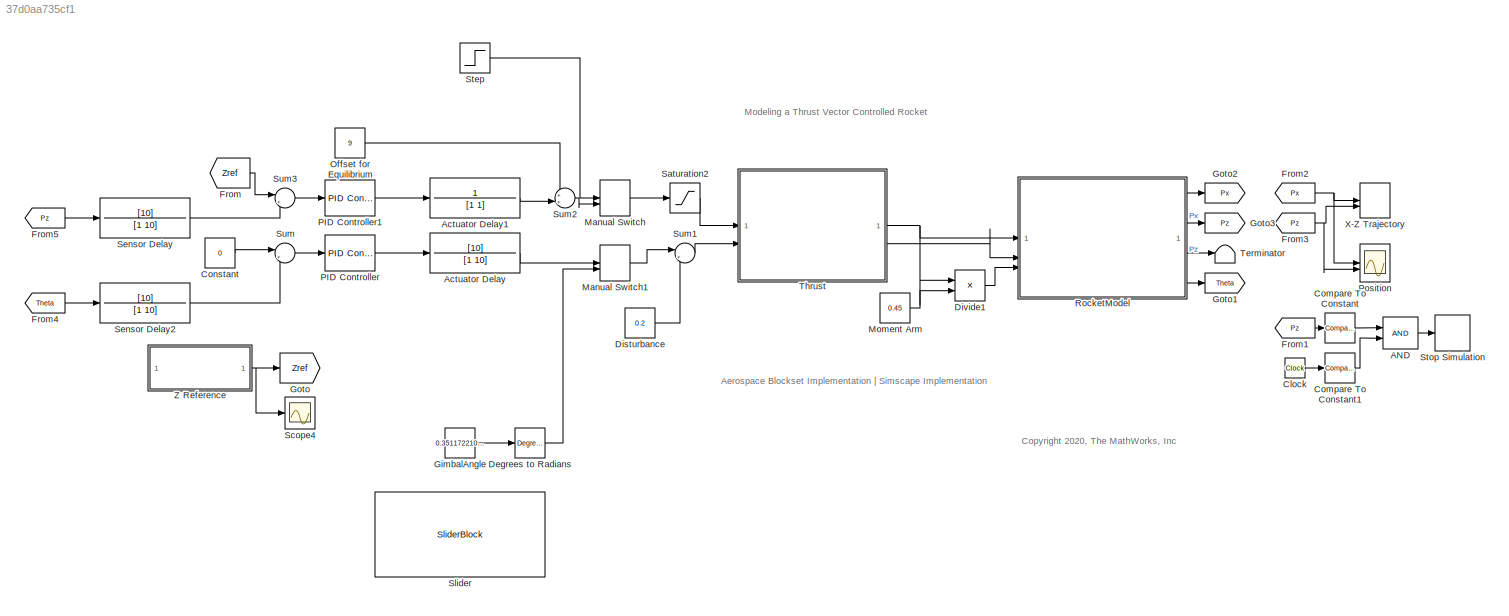
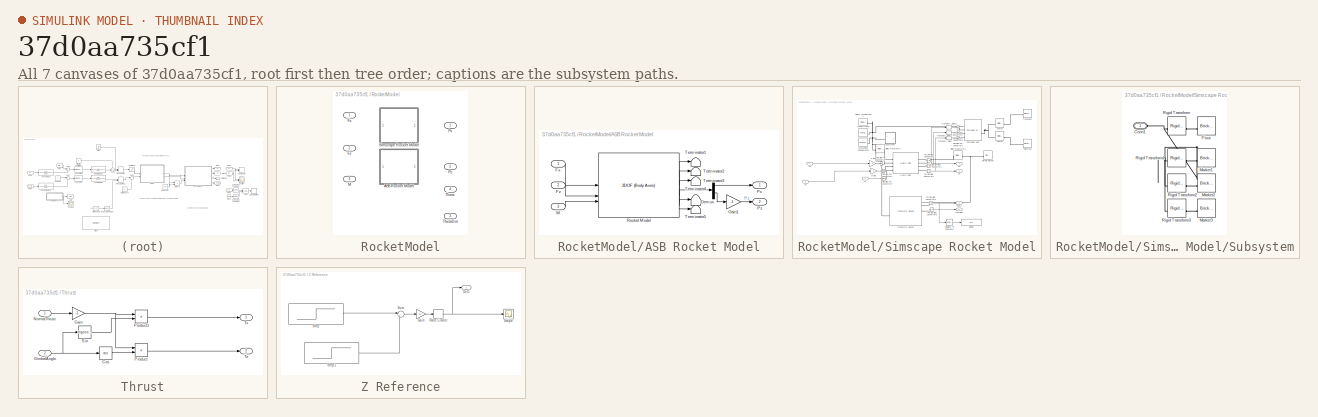
[diagram: thumbnail index - all 7 canvases of the model, root first then tree order]
MODEL slx_37d0aa735cf1
KIND model
CONFIG AbsTol = auto
CONFIG EnableMultiTasking = off
CONFIG FixedStep = 0.001
CONFIG MaxStep = auto
CONFIG MinStep = auto
CONFIG PostLoadFcn = VSS_MODE = 0;
CONFIG RelTol = 1e-3
CONFIG SampleTimeConstraint = Unconstrained
CONFIG SolverName = FixedStepAuto
CONFIG StartTime = 0.0
CONFIG StopTime = 100
BLOCK [Logic] AND
  AllPortsSameDT = off
  IconShape = distinctive
  OutDataTypeStr = boolean
BLOCK [TransferFcn] Actuator Delay
  Denominator = [1 10]
  Numerator = [10]
BLOCK [TransferFcn] Actuator Delay1
  Denominator = [1 1]
  Numerator = 1
BLOCK [Clock] Clock
BLOCK [Reference] Compare To Constant  REF=simulink/Logic and Bit
Operations/Compare
To Constant
  SourceBlock = simulink/Logic and Bit\nOperations/Compare\nTo Constant
  SourceType = Compare To Constant
BLOCK [Reference] Compare To Constant1  REF=simulink/Logic and Bit
Operations/Compare
To Constant
  SourceBlock = simulink/Logic and Bit\nOperations/Compare\nTo Constant
  SourceType = Compare To Constant
BLOCK [Constant] Constant
  Value = 0
BLOCK [Reference] Degrees to Radians  REF=simulink_extras/Transformations/Degrees to
Radians
  SourceBlock = simulink_extras/Transformations/Degrees to\nRadians
  SourceType = DegreesToRadians
BLOCK [Constant] Disturbance
  Value = 0.2
BLOCK [Product] Divide1
  Inputs = **
BLOCK [From] From
  GotoTag = Zref
BLOCK [From] From1
  GotoTag = Pz
BLOCK [From] From2
  GotoTag = Px
BLOCK [From] From3
  GotoTag = Pz
BLOCK [From] From4
  GotoTag = Theta
BLOCK [From] From5
  GotoTag = Pz
BLOCK [Constant] GimbalAngle
  Value = 0.3511722106296797
BLOCK [Goto] Goto
  GotoTag = Zref
BLOCK [Goto] Goto1
  GotoTag = Theta
BLOCK [Goto] Goto2
  GotoTag = Px
BLOCK [Goto] Goto3
  GotoTag = Pz
BLOCK [ManualSwitch] Manual Switch
  CurrentSetting = 0
BLOCK [ManualSwitch] Manual Switch1
BLOCK [Constant] Moment Arm 
  Value = 0.45
BLOCK [Constant] Offset for Equilibrium
  Value = 9
BLOCK [Reference] PID Controller  REF=slpidlib/PID Controller
  LibrarySourceBlock = simulink/Continuous/PID Controller
  SourceBlock = slpidlib/PID Controller
  SourceType = PID 1dof
BLOCK [Reference] PID Controller1  REF=slpidlib/PID Controller
  LibrarySourceBlock = simulink/Continuous/PID Controller
  SourceBlock = slpidlib/PID Controller
  SourceType = PID 1dof
BLOCK [Scope] Position
  Floating = off
  NumInputPorts = 2
  ScopeSpecificationString = Simulink.scopes.TimeScopeBlockCfg('CurrentConfiguration', extmgr.ConfigurationSet(extmgr.Configuration('Core','General UI',true),extmgr.Configuration('Core','Source UI',true),extmgr.Configuration('Sources','WiredSimulink',true,'DataLoggingVariableName','ScopeData2'),extmgr.Configuration('Visuals','Time Domain',true,'SerializedDisplays',{struct('MinYLimReal','-15.24001','MaxYLimReal','1.75797','YLa...<+2289ch>
BLOCK [SubSystem] RocketModel
  Variant = on
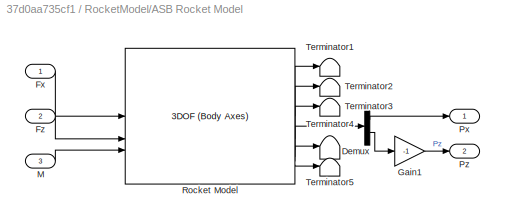
BLOCK [SubSystem] RocketModel/ASB Rocket Model
  VariantControl = VSS_MODE == 1
BLOCK [Demux] RocketModel/ASB Rocket Model/Demux
  Outputs = 2
BLOCK [Inport] RocketModel/ASB Rocket Model/Fx
BLOCK [Inport] RocketModel/ASB Rocket Model/Fz
  Port = 2
BLOCK [Gain] RocketModel/ASB Rocket Model/Gain1
  Gain = -1
BLOCK [Inport] RocketModel/ASB Rocket Model/M
  Port = 3
BLOCK [Outport] RocketModel/ASB Rocket Model/Px
BLOCK [Outport] RocketModel/ASB Rocket Model/Pz
  Port = 2
BLOCK [Reference] RocketModel/ASB Rocket Model/Rocket Model  REF=shared3dof/3DOF (Body Axes)
  SourceBlock = shared3dof/3DOF (Body Axes)
  SourceType = 3DOF EoM
BLOCK [Terminator] RocketModel/ASB Rocket Model/Terminator1
BLOCK [Terminator] RocketModel/ASB Rocket Model/Terminator2
BLOCK [Terminator] RocketModel/ASB Rocket Model/Terminator3
BLOCK [Terminator] RocketModel/ASB Rocket Model/Terminator4
BLOCK [Terminator] RocketModel/ASB Rocket Model/Terminator5
BLOCK [Inport] RocketModel/Fx 
BLOCK [Inport] RocketModel/Fz
  Port = 2
BLOCK [Inport] RocketModel/M
  Port = 3
BLOCK [Outport] RocketModel/Px
BLOCK [Outport] RocketModel/Pz 
  Port = 2
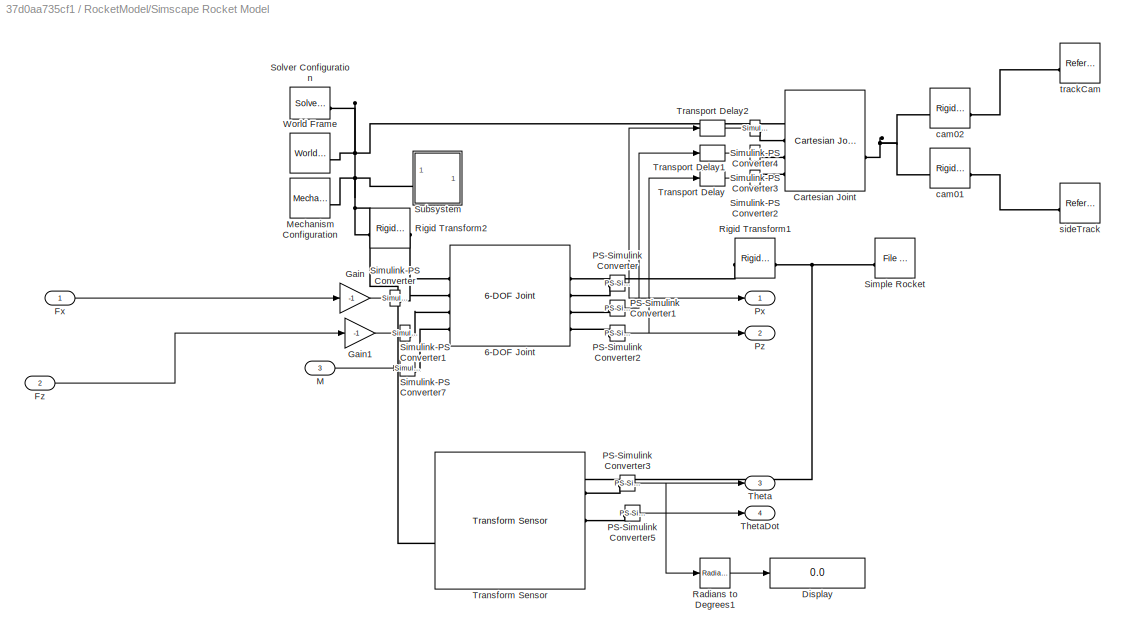
BLOCK [SubSystem] RocketModel/Simscape Rocket Model
  VariantControl = VSS_MODE == 0
BLOCK [Reference] RocketModel/Simscape Rocket Model/6-DOF Joint  REF=sm_lib/Joints/6-DOF Joint
  SourceBlock = sm_lib/Joints/6-DOF Joint
  SourceType = 6-DOF Joint
BLOCK [Reference] RocketModel/Simscape Rocket Model/Cartesian Joint  REF=sm_lib/Joints/Cartesian
Joint
  SourceBlock = sm_lib/Joints/Cartesian\nJoint
  SourceType = Cartesian\nJoint
BLOCK [Display] RocketModel/Simscape Rocket Model/Display
  Decimation = 1
BLOCK [Inport] RocketModel/Simscape Rocket Model/Fx
BLOCK [Inport] RocketModel/Simscape Rocket Model/Fz
  Port = 2
BLOCK [Gain] RocketModel/Simscape Rocket Model/Gain
  Gain = -1
BLOCK [Gain] RocketModel/Simscape Rocket Model/Gain1
  Gain = -1
BLOCK [Inport] RocketModel/Simscape Rocket Model/M
  Port = 3
BLOCK [Reference] RocketModel/Simscape Rocket Model/Mechanism Configuration  REF=sm_lib/Utilities/Mechanism
Configuration
  SourceBlock = sm_lib/Utilities/Mechanism\nConfiguration
  SourceType = Mechanism\nConfiguration
BLOCK [Reference] RocketModel/Simscape Rocket Model/PS-Simulink Converter  REF=nesl_utility/PS-Simulink
Converter
  SourceBlock = nesl_utility/PS-Simulink\nConverter
  SourceType = PS-Simulink\nConverter
BLOCK [Reference] RocketModel/Simscape Rocket Model/PS-Simulink Converter1  REF=nesl_utility/PS-Simulink
Converter
  SourceBlock = nesl_utility/PS-Simulink\nConverter
  SourceType = PS-Simulink\nConverter
BLOCK [Reference] RocketModel/Simscape Rocket Model/PS-Simulink Converter2  REF=nesl_utility/PS-Simulink
Converter
  SourceBlock = nesl_utility/PS-Simulink\nConverter
  SourceType = PS-Simulink\nConverter
BLOCK [Reference] RocketModel/Simscape Rocket Model/PS-Simulink Converter3  REF=nesl_utility/PS-Simulink
Converter
  SourceBlock = nesl_utility/PS-Simulink\nConverter
  SourceType = PS-Simulink\nConverter
BLOCK [Reference] RocketModel/Simscape Rocket Model/PS-Simulink Converter5  REF=nesl_utility/PS-Simulink
Converter
  SourceBlock = nesl_utility/PS-Simulink\nConverter
  SourceType = PS-Simulink\nConverter
BLOCK [Outport] RocketModel/Simscape Rocket Model/Px
BLOCK [Outport] RocketModel/Simscape Rocket Model/Pz
  Port = 2
BLOCK [Reference] RocketModel/Simscape Rocket Model/Radians to Degrees1  REF=simulink_extras/Transformations/Radians
to Degrees
  SourceBlock = simulink_extras/Transformations/Radians\nto Degrees
  SourceType = RadiansToDegrees
BLOCK [Reference] RocketModel/Simscape Rocket Model/Rigid Transform1  REF=sm_lib/Frames and
Transforms/Rigid
Transform
  NameLocation = top
  SourceBlock = sm_lib/Frames and\nTransforms/Rigid\nTransform
  SourceType = Rigid\nTransform
BLOCK [Reference] RocketModel/Simscape Rocket Model/Rigid Transform2  REF=sm_lib/Frames and
Transforms/Rigid
Transform
  NameLocation = top
  SourceBlock = sm_lib/Frames and\nTransforms/Rigid\nTransform
  SourceType = Rigid\nTransform
BLOCK [Reference] RocketModel/Simscape Rocket Model/Simple Rocket  REF=sm_lib/Body Elements/File Solid
  NameLocation = top
  SourceBlock = sm_lib/Body Elements/File Solid
  SourceType = File Solid
BLOCK [Reference] RocketModel/Simscape Rocket Model/Simulink-PS Converter  REF=nesl_utility/Simulink-PS
Converter
  SourceBlock = nesl_utility/Simulink-PS\nConverter
  SourceType = Simulink-PS\nConverter
BLOCK [Reference] RocketModel/Simscape Rocket Model/Simulink-PS Converter1  REF=nesl_utility/Simulink-PS
Converter
  SourceBlock = nesl_utility/Simulink-PS\nConverter
  SourceType = Simulink-PS\nConverter
BLOCK [Reference] RocketModel/Simscape Rocket Model/Simulink-PS Converter2  REF=nesl_utility/Simulink-PS
Converter
  SourceBlock = nesl_utility/Simulink-PS\nConverter
  SourceType = Simulink-PS\nConverter
BLOCK [Reference] RocketModel/Simscape Rocket Model/Simulink-PS Converter3  REF=nesl_utility/Simulink-PS
Converter
  SourceBlock = nesl_utility/Simulink-PS\nConverter
  SourceType = Simulink-PS\nConverter
BLOCK [Reference] RocketModel/Simscape Rocket Model/Simulink-PS Converter4  REF=nesl_utility/Simulink-PS
Converter
  SourceBlock = nesl_utility/Simulink-PS\nConverter
  SourceType = Simulink-PS\nConverter
BLOCK [Reference] RocketModel/Simscape Rocket Model/Simulink-PS Converter7  REF=nesl_utility/Simulink-PS
Converter
  SourceBlock = nesl_utility/Simulink-PS\nConverter
  SourceType = Simulink-PS\nConverter
BLOCK [Reference] RocketModel/Simscape Rocket Model/Solver Configuration  REF=nesl_utility/Solver
Configuration
  SourceBlock = nesl_utility/Solver\nConfiguration
  SourceType = Solver\nConfiguration
BLOCK [SubSystem] RocketModel/Simscape Rocket Model/Subsystem
BLOCK [PMIOPort] RocketModel/Simscape Rocket Model/Subsystem/Conn1
  Side = Left
BLOCK [Reference] RocketModel/Simscape Rocket Model/Subsystem/Floor  REF=sm_lib/Body Elements/Brick Solid
  NameLocation = top
  SourceBlock = sm_lib/Body Elements/Brick Solid
  SourceType = Brick Solid
BLOCK [Reference] RocketModel/Simscape Rocket Model/Subsystem/Marker1  REF=sm_lib/Body Elements/Brick Solid
  NameLocation = top
  SourceBlock = sm_lib/Body Elements/Brick Solid
  SourceType = Brick Solid
BLOCK [Reference] RocketModel/Simscape Rocket Model/Subsystem/Marker2  REF=sm_lib/Body Elements/Brick Solid
  NameLocation = top
  SourceBlock = sm_lib/Body Elements/Brick Solid
  SourceType = Brick Solid
BLOCK [Reference] RocketModel/Simscape Rocket Model/Subsystem/Marker3  REF=sm_lib/Body Elements/Brick Solid
  NameLocation = top
  SourceBlock = sm_lib/Body Elements/Brick Solid
  SourceType = Brick Solid
BLOCK [Reference] RocketModel/Simscape Rocket Model/Subsystem/Rigid Transform  REF=sm_lib/Frames and
Transforms/Rigid
Transform
  SourceBlock = sm_lib/Frames and\nTransforms/Rigid\nTransform
  SourceType = Rigid\nTransform
BLOCK [Reference] RocketModel/Simscape Rocket Model/Subsystem/Rigid Transform1  REF=sm_lib/Frames and
Transforms/Rigid
Transform
  SourceBlock = sm_lib/Frames and\nTransforms/Rigid\nTransform
  SourceType = Rigid\nTransform
BLOCK [Reference] RocketModel/Simscape Rocket Model/Subsystem/Rigid Transform2  REF=sm_lib/Frames and
Transforms/Rigid
Transform
  SourceBlock = sm_lib/Frames and\nTransforms/Rigid\nTransform
  SourceType = Rigid\nTransform
BLOCK [Reference] RocketModel/Simscape Rocket Model/Subsystem/Rigid Transform3  REF=sm_lib/Frames and
Transforms/Rigid
Transform
  SourceBlock = sm_lib/Frames and\nTransforms/Rigid\nTransform
  SourceType = Rigid\nTransform
BLOCK [Outport] RocketModel/Simscape Rocket Model/Theta
  Port = 3
BLOCK [Outport] RocketModel/Simscape Rocket Model/ThetaDot
  Port = 4
BLOCK [Reference] RocketModel/Simscape Rocket Model/Transform Sensor  REF=sm_lib/Frames and
Transforms/Transform
Sensor
  SourceBlock = sm_lib/Frames and\nTransforms/Transform\nSensor
  SourceType = Transform\nSensor
BLOCK [TransportDelay] RocketModel/Simscape Rocket Model/Transport Delay
  BufferSize = 100
  DelayTime = 0.01
BLOCK [TransportDelay] RocketModel/Simscape Rocket Model/Transport Delay1
  BufferSize = 100
  DelayTime = 0.01
BLOCK [TransportDelay] RocketModel/Simscape Rocket Model/Transport Delay2
  BufferSize = 100
  DelayTime = 0.01
BLOCK [Reference] RocketModel/Simscape Rocket Model/World Frame  REF=sm_lib/Frames and
Transforms/World Frame
  SourceBlock = sm_lib/Frames and\nTransforms/World Frame
  SourceType = World Frame
BLOCK [Reference] RocketModel/Simscape Rocket Model/cam01  REF=sm_lib/Frames and
Transforms/Rigid
Transform
  SourceBlock = sm_lib/Frames and\nTransforms/Rigid\nTransform
  SourceType = Rigid\nTransform
BLOCK [Reference] RocketModel/Simscape Rocket Model/cam02  REF=sm_lib/Frames and
Transforms/Rigid
Transform
  SourceBlock = sm_lib/Frames and\nTransforms/Rigid\nTransform
  SourceType = Rigid\nTransform
BLOCK [Reference] RocketModel/Simscape Rocket Model/sideTrack  REF=sm_lib/Frames and
Transforms/Reference
Frame
  SourceBlock = sm_lib/Frames and\nTransforms/Reference\nFrame
  SourceType = Reference\nFrame
BLOCK [Reference] RocketModel/Simscape Rocket Model/trackCam  REF=sm_lib/Frames and
Transforms/Reference
Frame
  SourceBlock = sm_lib/Frames and\nTransforms/Reference\nFrame
  SourceType = Reference\nFrame
BLOCK [Outport] RocketModel/Theta
  Port = 4
BLOCK [Outport] RocketModel/ThetaDot
  Port = 3
BLOCK [Saturate] Saturation2
  LowerLimit = 0
  UpperLimit = 100
BLOCK [Scope] Scope4
  Floating = off
  NumInputPorts = 1
  ScopeSpecificationString = Simulink.scopes.TimeScopeBlockCfg('CurrentConfiguration', extmgr.ConfigurationSet(extmgr.Configuration('Core','General UI',true),extmgr.Configuration('Core','Source UI',true),extmgr.Configuration('Sources','WiredSimulink',true,'DataLoggingVariableName','ScopeData6'),extmgr.Configuration('Visuals','Time Domain',true,'SerializedDisplays',{struct('MinYLimReal','-1.125','MaxYLimReal','10.125','YLabelR...<+1481ch>
BLOCK [TransferFcn] Sensor Delay
  Denominator = [1 10]
  Numerator = [10]
BLOCK [TransferFcn] Sensor Delay2
  Denominator = [1 10]
  Numerator = [10]
BLOCK [SliderBlock] Slider
  ScaleMax = 1
  ScaleMin = -1
  TickInterval = 1
BLOCK [Step] Step
  After = 0
  Before = 15
  SampleTime = 0
  Time = 2
BLOCK [Stop] Stop Simulation
BLOCK [Sum] Sum
  Inputs = |+-
BLOCK [Sum] Sum1
  Inputs = |++
BLOCK [Sum] Sum2
  Inputs = ++|
BLOCK [Sum] Sum3
  Inputs = |+-
BLOCK [Terminator] Terminator
BLOCK [SubSystem] Thrust
BLOCK [Trigonometry] Thrust/Cos
  Operator = cos
BLOCK [Gain] Thrust/Gain
  Gain = -1
BLOCK [Inport] Thrust/GimbalAngle
  Port = 2
BLOCK [Inport] Thrust/NormalThrust
BLOCK [Product] Thrust/Product
  RndMeth = Zero
BLOCK [Product] Thrust/Product1
  RndMeth = Zero
BLOCK [Trigonometry] Thrust/Sin
BLOCK [Outport] Thrust/Tx
BLOCK [Outport] Thrust/Tz
  Port = 2
BLOCK [Record] X-Z Trajectory
  CompatibilityTag = XY
  FileSettingsInternal = {"entries":[{"content":{"excelSettings":{"content":{},"type":"Streamout.ExcelSettings"}},"type":"Streamout.FileSettingStorage","uuid":""}],"packageUris":["http:\/\/schema.mathworks.com\/mf0\/streamout_blocks\/R2020a"],"version":"1.0"}
  Layout = [1 1]
  SignalsInternal = {"entries":[{"content":{"signals":[{"content":{"blockPath":[],"dimensions":[1],"domain":"","lineColor":"#a2142f","plots":[ 1 ],"port":1,"sid":[""],"signalID":1,"signalName":"From2"},"type":"RecordBlkView.Signal","uuid":""},{"content":{"blockPath":[],"dimensions":[1],"domain":"","lineColor":"#139fff","plots":[ 1 ],"port":2,"sid":[""],"signalID":2,"signalName":"From3"},"type":"RecordBlkView.Signal",...<+347ch>
  VisualizationBindings = {"xyplotplugin":{"info":[{"series":[{"bindingParametersList":[{"parameter":"X-Axis","signalID":1,"signalName":"From2"},{"parameter":"Y-Axis","signalID":2,"signalName":"From3"}],"seriesID":0}],"subplotID":1}]}}
  st = -1
BLOCK [SubSystem] Z Reference
BLOCK [Gain] Z Reference/Gain
  Gain = 20
BLOCK [Outport] Z Reference/Out1
BLOCK [RateLimiter] Z Reference/Rate Limiter
  SampleTimeMode = inherited
BLOCK [Scope] Z Reference/Scope
  Floating = off
  NumInputPorts = 1
  ScopeSpecificationString = Simulink.scopes.TimeScopeBlockCfg('CurrentConfiguration', extmgr.ConfigurationSet(extmgr.Configuration('Core','General UI',true),extmgr.Configuration('Core','Source UI',true),extmgr.Configuration('Sources','WiredSimulink',true,'DataLoggingVariableName','ScopeData5'),extmgr.Configuration('Visuals','Time Domain',true,'SerializedDisplays',{struct('MinYLimReal','-1.125','MaxYLimReal','10.125','YLabelR...<+1478ch>
BLOCK [Step] Z Reference/Step
  SampleTime = 0
BLOCK [Step] Z Reference/Step1
  SampleTime = 0
  Time = 10
BLOCK [Sum] Z Reference/Sum
  Inputs = |+-
ANNOTATION (root): Aerospace Blockset Implementation | Simscape Implementation
ANNOTATION (root): Modeling a Thrust Vector Controlled Rocket
ANNOTATION (root): <copyright redacted>
LINE AND:1 -> Stop Simulation:1
LINE Actuator Delay1:1 -> Sum2:2
LINE Actuator Delay:1 -> Manual Switch1:1
LINE Clock:1 -> Compare To Constant1:1
LINE Compare To Constant1:1 -> AND:2
LINE Compare To Constant:1 -> AND:1
LINE Constant:1 -> Sum:1
LINE Degrees to Radians:1 -> Manual Switch1:2
LINE Disturbance:1 -> Sum1:2
LINE Divide1:1 -> RocketModel:3
LINE From1:1 -> Compare To Constant:1
NET From2:1 -> Position:1, X-Z Trajectory:1
NET From3:1 -> Position:2, X-Z Trajectory:2
LINE From4:1 -> Sensor Delay2:1
LINE From5:1 -> Sensor Delay:1
LINE From:1 -> Sum3:1
LINE GimbalAngle:1 -> Degrees to Radians:1
LINE Manual Switch1:1 -> Sum1:1
LINE Manual Switch:1 -> Saturation2:1
LINE Moment Arm :1 -> Divide1:2
LINE Offset for Equilibrium:1 -> Sum2:1
LINE PID Controller1:1 -> Actuator Delay1:1
LINE PID Controller:1 -> Actuator Delay:1
LINE RocketModel/ASB Rocket Model/Demux:1 -> RocketModel/ASB Rocket Model/Px:1
LINE RocketModel/ASB Rocket Model/Demux:2 -> RocketModel/ASB Rocket Model/Gain1:1
LINE RocketModel/ASB Rocket Model/Fx:1 -> RocketModel/ASB Rocket Model/Rocket Model:1
LINE RocketModel/ASB Rocket Model/Fz:1 -> RocketModel/ASB Rocket Model/Rocket Model:2
LINE RocketModel/ASB Rocket Model/Gain1:1 -> RocketModel/ASB Rocket Model/Pz:1
LINE RocketModel/ASB Rocket Model/M:1 -> RocketModel/ASB Rocket Model/Rocket Model:3
LINE RocketModel/ASB Rocket Model/Rocket Model:1 -> RocketModel/ASB Rocket Model/Terminator1:1
LINE RocketModel/ASB Rocket Model/Rocket Model:2 -> RocketModel/ASB Rocket Model/Terminator2:1
LINE RocketModel/ASB Rocket Model/Rocket Model:3 -> RocketModel/ASB Rocket Model/Terminator3:1
LINE RocketModel/ASB Rocket Model/Rocket Model:4 -> RocketModel/ASB Rocket Model/Demux:1
LINE RocketModel/ASB Rocket Model/Rocket Model:5 -> RocketModel/ASB Rocket Model/Terminator4:1
LINE RocketModel/ASB Rocket Model/Rocket Model:6 -> RocketModel/ASB Rocket Model/Terminator5:1
LINE RocketModel/Simscape Rocket Model/Fx:1 -> RocketModel/Simscape Rocket Model/Gain:1
LINE RocketModel/Simscape Rocket Model/Fz:1 -> RocketModel/Simscape Rocket Model/Gain1:1
LINE RocketModel/Simscape Rocket Model/Gain1:1 -> RocketModel/Simscape Rocket Model/Simulink-PS Converter1:1
LINE RocketModel/Simscape Rocket Model/Gain:1 -> RocketModel/Simscape Rocket Model/Simulink-PS Converter:1
LINE RocketModel/Simscape Rocket Model/M:1 -> RocketModel/Simscape Rocket Model/Simulink-PS Converter7:1
LINE RocketModel/Simscape Rocket Model/PS-Simulink Converter1:1 -> RocketModel/Simscape Rocket Model/Transport Delay1:1
NET RocketModel/Simscape Rocket Model/PS-Simulink Converter2:1 -> RocketModel/Simscape Rocket Model/Pz:1, RocketModel/Simscape Rocket Model/Transport Delay:1
NET RocketModel/Simscape Rocket Model/PS-Simulink Converter3:1 -> RocketModel/Simscape Rocket Model/Radians to Degrees1:1, RocketModel/Simscape Rocket Model/Theta:1
LINE RocketModel/Simscape Rocket Model/PS-Simulink Converter5:1 -> RocketModel/Simscape Rocket Model/ThetaDot:1
NET RocketModel/Simscape Rocket Model/PS-Simulink Converter:1 -> RocketModel/Simscape Rocket Model/Px:1, RocketModel/Simscape Rocket Model/Transport Delay2:1
LINE RocketModel/Simscape Rocket Model/Radians to Degrees1:1 -> RocketModel/Simscape Rocket Model/Display:1
LINE RocketModel/Simscape Rocket Model/Transport Delay1:1 -> RocketModel/Simscape Rocket Model/Simulink-PS Converter3:1
LINE RocketModel/Simscape Rocket Model/Transport Delay2:1 -> RocketModel/Simscape Rocket Model/Simulink-PS Converter4:1
LINE RocketModel/Simscape Rocket Model/Transport Delay:1 -> RocketModel/Simscape Rocket Model/Simulink-PS Converter2:1
LINE RocketModel:1 -> Goto2:1
LINE RocketModel:2 -> Goto3:1
LINE RocketModel:3 -> Terminator:1
LINE RocketModel:4 -> Goto1:1
LINE Saturation2:1 -> Thrust:1
LINE Sensor Delay2:1 -> Sum:2
LINE Sensor Delay:1 -> Sum3:2
LINE Step:1 -> Manual Switch:1
LINE Sum1:1 -> Thrust:2
LINE Sum2:1 -> Manual Switch:2
LINE Sum3:1 -> PID Controller1:1
LINE Sum:1 -> PID Controller:1
LINE Thrust/Cos:1 -> Thrust/Product:2
NET Thrust/Gain:1 -> Thrust/Product1:1, Thrust/Product:1
NET Thrust/GimbalAngle:1 -> Thrust/Cos:1, Thrust/Sin:1
LINE Thrust/NormalThrust:1 -> Thrust/Gain:1
LINE Thrust/Product1:1 -> Thrust/Tx:1
LINE Thrust/Product:1 -> Thrust/Tz:1
LINE Thrust/Sin:1 -> Thrust/Product1:2
NET Thrust:1 -> Divide1:1, RocketModel:1
LINE Thrust:2 -> RocketModel:2
LINE Z Reference/Gain:1 -> Z Reference/Rate Limiter:1
NET Z Reference/Rate Limiter:1 -> Z Reference/Out1:1, Z Reference/Scope:1
LINE Z Reference/Step1:1 -> Z Reference/Sum:2
LINE Z Reference/Step:1 -> Z Reference/Sum:1
LINE Z Reference/Sum:1 -> Z Reference/Gain:1
NET Z Reference:1 -> Goto:1, Scope4:1
PLINE RocketModel/Simscape Rocket Model/6-DOF Joint:LConn1 -- RocketModel/Simscape Rocket Model/Rigid Transform2:LConn1
PLINE RocketModel/Simscape Rocket Model/6-DOF Joint:LConn2 -- RocketModel/Simscape Rocket Model/Simulink-PS Converter:RConn1
PLINE RocketModel/Simscape Rocket Model/6-DOF Joint:LConn3 -- RocketModel/Simscape Rocket Model/Simulink-PS Converter1:RConn1
PLINE RocketModel/Simscape Rocket Model/6-DOF Joint:LConn4 -- RocketModel/Simscape Rocket Model/Simulink-PS Converter7:RConn1
PLINE RocketModel/Simscape Rocket Model/6-DOF Joint:RConn1 -- RocketModel/Simscape Rocket Model/Rigid Transform1:RConn1
PLINE RocketModel/Simscape Rocket Model/6-DOF Joint:RConn2 -- RocketModel/Simscape Rocket Model/PS-Simulink Converter:LConn1
PLINE RocketModel/Simscape Rocket Model/6-DOF Joint:RConn3 -- RocketModel/Simscape Rocket Model/PS-Simulink Converter1:LConn1
PLINE RocketModel/Simscape Rocket Model/6-DOF Joint:RConn4 -- RocketModel/Simscape Rocket Model/PS-Simulink Converter2:LConn1
PNET net1: RocketModel/Simscape Rocket Model/Cartesian Joint:LConn1 -- RocketModel/Simscape Rocket Model/Mechanism Configuration:RConn1 -- RocketModel/Simscape Rocket Model/Rigid Transform2:RConn1 -- RocketModel/Simscape Rocket Model/Solver Configuration:RConn1 -- RocketModel/Simscape Rocket Model/Subsystem:LConn1 -- RocketModel/Simscape Rocket Model/Transform Sensor:LConn1 -- RocketModel/Simscape Rocket Model/World Frame:RConn1
PLINE RocketModel/Simscape Rocket Model/Cartesian Joint:LConn2 -- RocketModel/Simscape Rocket Model/Simulink-PS Converter4:RConn1
PLINE RocketModel/Simscape Rocket Model/Cartesian Joint:LConn3 -- RocketModel/Simscape Rocket Model/Simulink-PS Converter3:RConn1
PLINE RocketModel/Simscape Rocket Model/Cartesian Joint:LConn4 -- RocketModel/Simscape Rocket Model/Simulink-PS Converter2:RConn1
PNET net2: RocketModel/Simscape Rocket Model/Cartesian Joint:RConn1 -- RocketModel/Simscape Rocket Model/cam01:LConn1 -- RocketModel/Simscape Rocket Model/cam02:LConn1
PLINE RocketModel/Simscape Rocket Model/PS-Simulink Converter3:LConn1 -- RocketModel/Simscape Rocket Model/Transform Sensor:RConn2
PLINE RocketModel/Simscape Rocket Model/PS-Simulink Converter5:LConn1 -- RocketModel/Simscape Rocket Model/Transform Sensor:RConn4
PNET net3: RocketModel/Simscape Rocket Model/Rigid Transform1:LConn1 -- RocketModel/Simscape Rocket Model/Simple Rocket:RConn1 -- RocketModel/Simscape Rocket Model/Transform Sensor:RConn1
PNET net4: RocketModel/Simscape Rocket Model/Subsystem/Conn1:RConn1 -- RocketModel/Simscape Rocket Model/Subsystem/Rigid Transform1:LConn1 -- RocketModel/Simscape Rocket Model/Subsystem/Rigid Transform2:LConn1 -- RocketModel/Simscape Rocket Model/Subsystem/Rigid Transform3:LConn1 -- RocketModel/Simscape Rocket Model/Subsystem/Rigid Transform:LConn1
PLINE RocketModel/Simscape Rocket Model/Subsystem/Floor:RConn1 -- RocketModel/Simscape Rocket Model/Subsystem/Rigid Transform:RConn1
PLINE RocketModel/Simscape Rocket Model/Subsystem/Marker1:RConn1 -- RocketModel/Simscape Rocket Model/Subsystem/Rigid Transform1:RConn1
PLINE RocketModel/Simscape Rocket Model/Subsystem/Marker2:RConn1 -- RocketModel/Simscape Rocket Model/Subsystem/Rigid Transform2:RConn1
PLINE RocketModel/Simscape Rocket Model/Subsystem/Marker3:RConn1 -- RocketModel/Simscape Rocket Model/Subsystem/Rigid Transform3:RConn1
PLINE RocketModel/Simscape Rocket Model/cam01:RConn1 -- RocketModel/Simscape Rocket Model/sideTrack:RConn1
PLINE RocketModel/Simscape Rocket Model/cam02:RConn1 -- RocketModel/Simscape Rocket Model/trackCam:RConn1
note: NET lines group one-source signal fan-out (src -> all destinations, sorted); 1:1 wires keep LINE; PNET lines group multi-terminal physical nets as a canonical sorted terminal list (undirected conserving connections); 2-terminal nets keep the pairwise PLINE form
